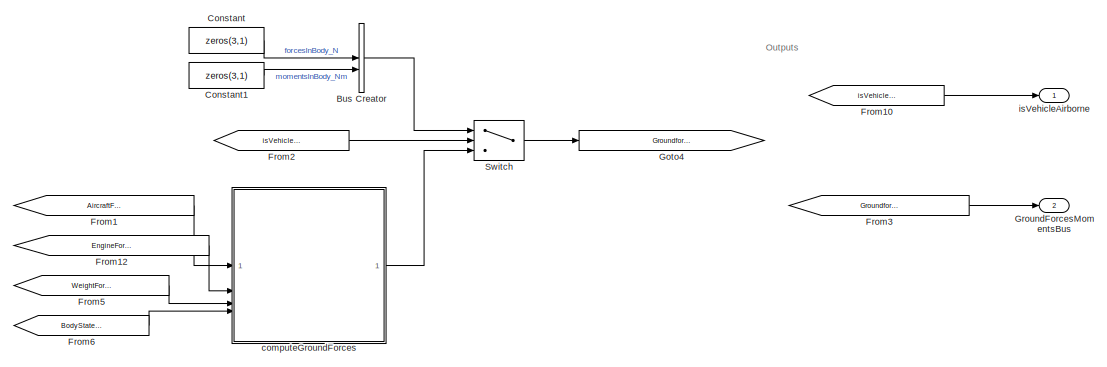
[diagram: root canvas - part 1/2, right side, full height]
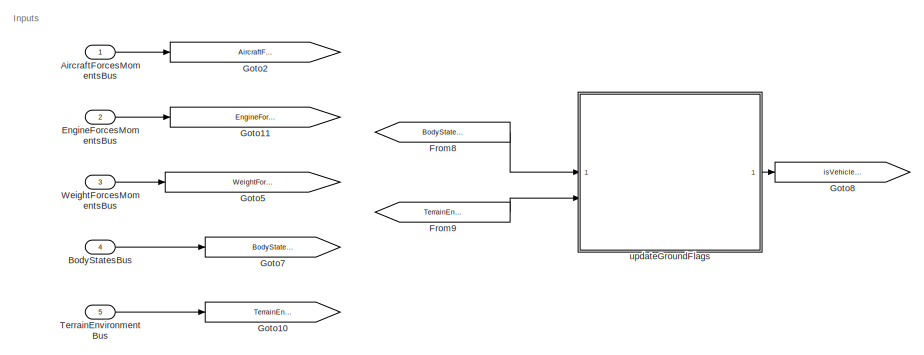
[diagram: root canvas - part 2/2, left side, full height]
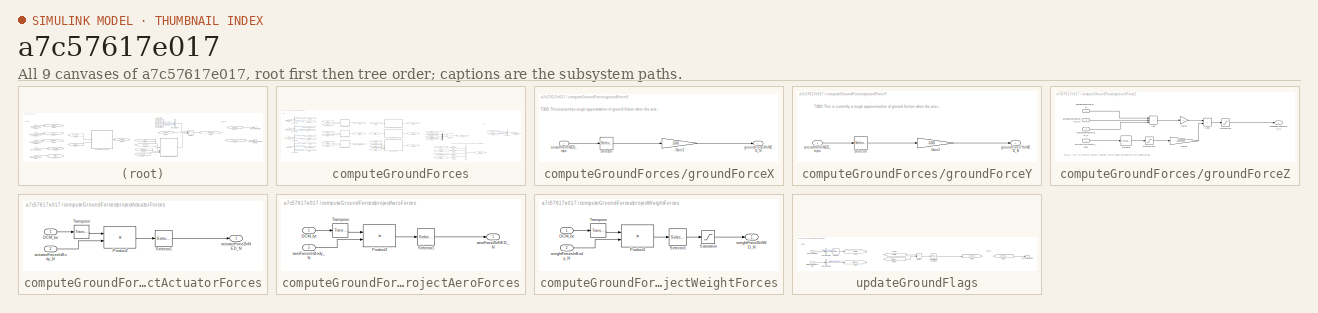
[diagram: thumbnail index - all 9 canvases of the model, root first then tree order]
MODEL slx_a7c57617e017
KIND model
BLOCK [Inport] AircraftForcesMomentsBus
  OutDataTypeStr = Bus: AircraftForcesMomentsBus
BLOCK [Inport] BodyStatesBus
  OutDataTypeStr = Bus: BodyStateBus
  Port = 4
BLOCK [BusCreator] Bus Creator
  DisplayOption = bar
  InheritFromInputs = on
  Inputs = 2
  OutDataTypeStr = Bus: ComponentForcesMomentsBus
BLOCK [Constant] Constant
  Value = zeros(3,1)
BLOCK [Constant] Constant1
  Value = zeros(3,1)
BLOCK [Inport] EngineForcesMomentsBus
  OutDataTypeStr = Bus: ComponentForcesMomentsBus
  Port = 2
BLOCK [From] From1
  GotoTag = AircraftForcesMomentsBus
BLOCK [From] From10
  GotoTag = isVehicleAirborne
BLOCK [From] From12
  GotoTag = EngineForcesMomentsBus
BLOCK [From] From2
  GotoTag = isVehicleAirborne
BLOCK [From] From3
  GotoTag = GroundforcesMomentsBus
BLOCK [From] From5
  GotoTag = WeightForcesMomentsBus
BLOCK [From] From6
  GotoTag = BodyStatesBus
BLOCK [From] From8
  GotoTag = BodyStatesBus
BLOCK [From] From9
  GotoTag = TerrainEnvironmentBus
BLOCK [Goto] Goto10
  GotoTag = TerrainEnvironmentBus
BLOCK [Goto] Goto11
  GotoTag = EngineForcesMomentsBus
BLOCK [Goto] Goto2
  GotoTag = AircraftForcesMomentsBus
BLOCK [Goto] Goto4
  GotoTag = GroundforcesMomentsBus
BLOCK [Goto] Goto5
  GotoTag = WeightForcesMomentsBus
BLOCK [Goto] Goto7
  GotoTag = BodyStatesBus
BLOCK [Goto] Goto8
  GotoTag = isVehicleAirborne
BLOCK [Outport] GroundForcesMomentsBus
  OutDataTypeStr = Bus: ComponentForcesMomentsBus
  Port = 2
BLOCK [Switch] Switch
  Criteria = u2 > Threshold
  InputSameDT = off
  SaturateOnIntegerOverflow = off
BLOCK [Inport] TerrainEnvironmentBus
  OutDataTypeStr = Bus: TerrainEnvironmentBus
  Port = 5
BLOCK [Inport] WeightForcesMomentsBus
  OutDataTypeStr = Bus: ComponentForcesMomentsBus
  Port = 3
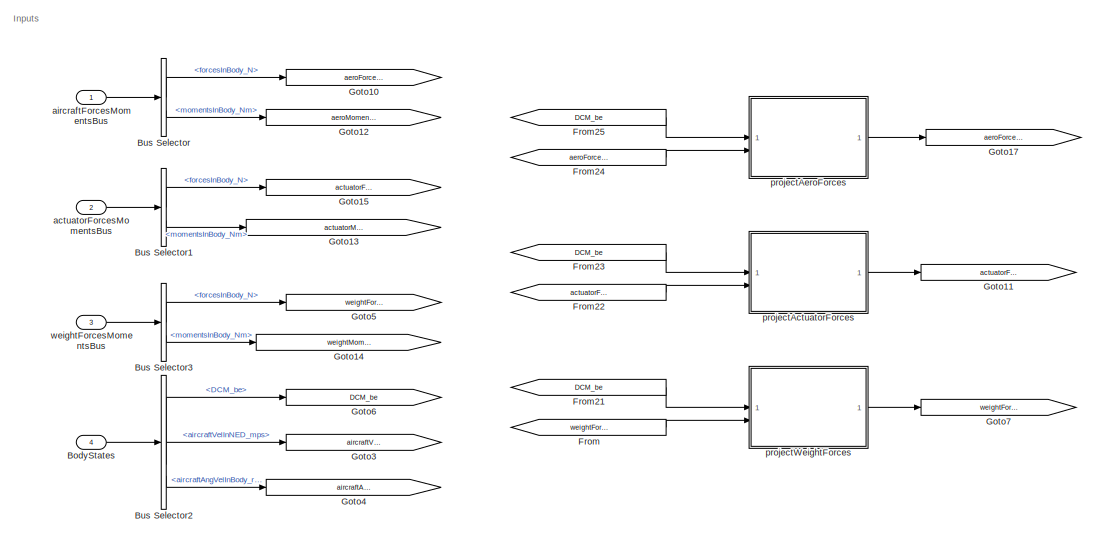
[diagram: computeGroundForces - part 1/3, left side, full height]
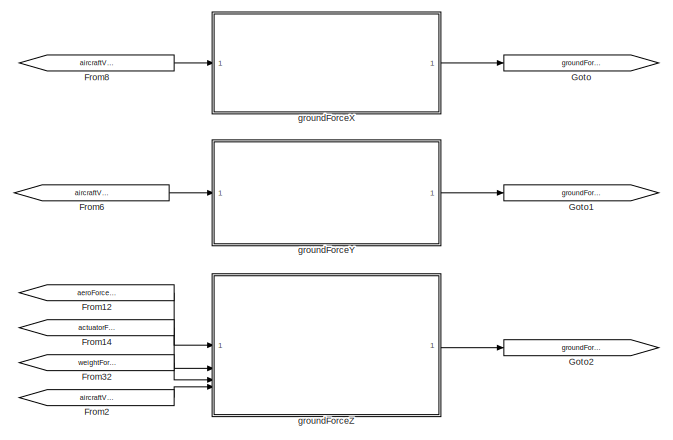
[diagram: computeGroundForces - part 2/3, central region]
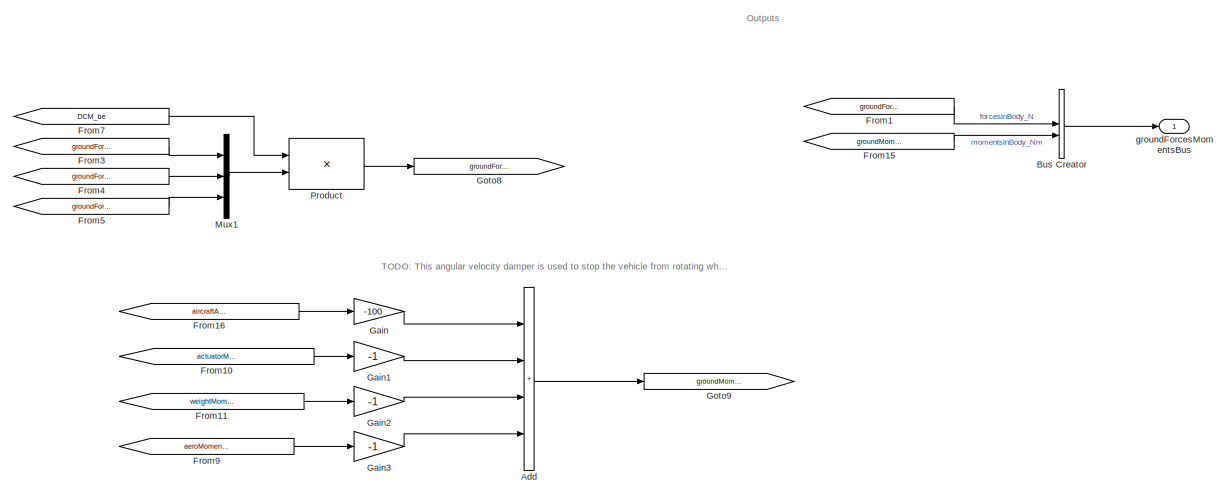
[diagram: computeGroundForces - part 3/3, right side, full height]
BLOCK [SubSystem] computeGroundForces
BLOCK [Sum] computeGroundForces/Add
  IconShape = rectangular
  Inputs = ++++
BLOCK [Inport] computeGroundForces/BodyStates
  OutDataTypeStr = Bus: BodyStateBus
  Port = 4
BLOCK [BusCreator] computeGroundForces/Bus Creator
  DisplayOption = bar
  InheritFromInputs = on
  Inputs = 2
  OutDataTypeStr = Bus: ComponentForcesMomentsBus
BLOCK [BusSelector] computeGroundForces/Bus Selector
  OutputSignals = forcesInBody_N,momentsInBody_Nm
BLOCK [BusSelector] computeGroundForces/Bus Selector1
  OutputSignals = forcesInBody_N,momentsInBody_Nm
BLOCK [BusSelector] computeGroundForces/Bus Selector2
  OutputSignals = DCM_be,aircraftVelInNED_mps,aircraftAngVelInBody_radps
BLOCK [BusSelector] computeGroundForces/Bus Selector3
  OutputSignals = forcesInBody_N,momentsInBody_Nm
BLOCK [From] computeGroundForces/From
  GotoTag = weightForcesInBody_N
BLOCK [From] computeGroundForces/From1
  GotoTag = groundForcesInBody_N
BLOCK [From] computeGroundForces/From10
  GotoTag = actuatorMomentsInBody_Nm
BLOCK [From] computeGroundForces/From11
  GotoTag = weightMomentsInBody_Nm
BLOCK [From] computeGroundForces/From12
  GotoTag = aeroForceZInNED_N
BLOCK [From] computeGroundForces/From14
  GotoTag = actuatorForceZInNED_N
BLOCK [From] computeGroundForces/From15
  GotoTag = groundMomentsInBody_Nm
BLOCK [From] computeGroundForces/From16
  GotoTag = aircraftAngVelBody_radps
BLOCK [From] computeGroundForces/From2
  GotoTag = aircraftVelInNED_mps
BLOCK [From] computeGroundForces/From21
  GotoTag = DCM_be
BLOCK [From] computeGroundForces/From22
  GotoTag = actuatorForcesInBody_N
BLOCK [From] computeGroundForces/From23
  GotoTag = DCM_be
BLOCK [From] computeGroundForces/From24
  GotoTag = aeroForcesInBody_N
BLOCK [From] computeGroundForces/From25
  GotoTag = DCM_be
BLOCK [From] computeGroundForces/From3
  GotoTag = groundForceXInNED_N
BLOCK [From] computeGroundForces/From32
  GotoTag = weightForceZInNED_N
BLOCK [From] computeGroundForces/From4
  GotoTag = groundForceYInNED_N
BLOCK [From] computeGroundForces/From5
  GotoTag = groundForceZInNED_N
BLOCK [From] computeGroundForces/From6
  GotoTag = aircraftVelInNED_mps
BLOCK [From] computeGroundForces/From7
  GotoTag = DCM_be
BLOCK [From] computeGroundForces/From8
  GotoTag = aircraftVelInNED_mps
BLOCK [From] computeGroundForces/From9
  GotoTag = aeroMomentsInBody_Nm
BLOCK [Gain] computeGroundForces/Gain
  Gain = -100
BLOCK [Gain] computeGroundForces/Gain1
  Gain = -1
BLOCK [Gain] computeGroundForces/Gain2
  Gain = -1
BLOCK [Gain] computeGroundForces/Gain3
  Gain = -1
BLOCK [Goto] computeGroundForces/Goto
  GotoTag = groundForceXInNED_N
BLOCK [Goto] computeGroundForces/Goto1
  GotoTag = groundForceYInNED_N
BLOCK [Goto] computeGroundForces/Goto10
  GotoTag = aeroForcesInBody_N
BLOCK [Goto] computeGroundForces/Goto11
  GotoTag = actuatorForceZInNED_N
BLOCK [Goto] computeGroundForces/Goto12
  GotoTag = aeroMomentsInBody_Nm
BLOCK [Goto] computeGroundForces/Goto13
  GotoTag = actuatorMomentsInBody_Nm
BLOCK [Goto] computeGroundForces/Goto14
  GotoTag = weightMomentsInBody_Nm
BLOCK [Goto] computeGroundForces/Goto15
  GotoTag = actuatorForcesInBody_N
BLOCK [Goto] computeGroundForces/Goto17
  GotoTag = aeroForceZInNED_N
BLOCK [Goto] computeGroundForces/Goto2
  GotoTag = groundForceZInNED_N
BLOCK [Goto] computeGroundForces/Goto3
  GotoTag = aircraftVelInNED_mps
BLOCK [Goto] computeGroundForces/Goto4
  GotoTag = aircraftAngVelBody_radps
BLOCK [Goto] computeGroundForces/Goto5
  GotoTag = weightForcesInBody_N
BLOCK [Goto] computeGroundForces/Goto6
  GotoTag = DCM_be
BLOCK [Goto] computeGroundForces/Goto7
  GotoTag = weightForceZInNED_N
BLOCK [Goto] computeGroundForces/Goto8
  GotoTag = groundForcesInBody_N
BLOCK [Goto] computeGroundForces/Goto9
  GotoTag = groundMomentsInBody_Nm
BLOCK [Mux] computeGroundForces/Mux1
  DisplayOption = bar
  Inputs = 3
BLOCK [Product] computeGroundForces/Product
  Multiplication = Matrix(*)
BLOCK [Inport] computeGroundForces/actuatorForcesMomentsBus
  OutDataTypeStr = Bus: ComponentForcesMomentsBus
  Port = 2
BLOCK [Inport] computeGroundForces/aircraftForcesMomentsBus
  OutDataTypeStr = Bus: AircraftForcesMomentsBus
BLOCK [SubSystem] computeGroundForces/groundForceX
BLOCK [Gain] computeGroundForces/groundForceX/Gain2
  Gain = -500
BLOCK [Selector] computeGroundForces/groundForceX/Selector
  IndexOptions = Index vector (dialog)
  Indices = 1
  InputPortWidth = 3
  OutputSizes = 1
BLOCK [Inport] computeGroundForces/groundForceX/aircraftVelInNED_mps
BLOCK [Outport] computeGroundForces/groundForceX/groundForceXInNED_N
BLOCK [SubSystem] computeGroundForces/groundForceY
BLOCK [Gain] computeGroundForces/groundForceY/Gain2
  Gain = -500
BLOCK [Selector] computeGroundForces/groundForceY/Selector
  IndexOptions = Index vector (dialog)
  Indices = 2
  InputPortWidth = 3
  OutputSizes = 1
BLOCK [Inport] computeGroundForces/groundForceY/aircraftVelInNED_mps
BLOCK [Outport] computeGroundForces/groundForceY/groundForceYInNED_N
BLOCK [SubSystem] computeGroundForces/groundForceZ
BLOCK [Sum] computeGroundForces/groundForceZ/Add
  IconShape = rectangular
  Inputs = +++
BLOCK [Sum] computeGroundForces/groundForceZ/Add1
  IconShape = rectangular
BLOCK [Gain] computeGroundForces/groundForceZ/Gain1
  Gain = -1
BLOCK [Gain] computeGroundForces/groundForceZ/Gain2
  Gain = -5000
BLOCK [Saturate] computeGroundForces/groundForceZ/Saturation
  LowerLimit = -inf
  UpperLimit = 0
BLOCK [Saturate] computeGroundForces/groundForceZ/Saturation1
  LowerLimit = 0
  UpperLimit = inf
BLOCK [Selector] computeGroundForces/groundForceZ/Selector
  IndexOptions = Index vector (dialog)
  Indices = 3
  InputPortWidth = 3
  OutputSizes = 1
BLOCK [Inport] computeGroundForces/groundForceZ/actuatorForceZInNED_N
  Port = 2
BLOCK [Inport] computeGroundForces/groundForceZ/aeroForceZInNED_N
BLOCK [Inport] computeGroundForces/groundForceZ/aircraftVelInNED_mps
  Port = 4
BLOCK [Outport] computeGroundForces/groundForceZ/groundForceZInNED_N
BLOCK [Inport] computeGroundForces/groundForceZ/weightForceZInNED_N
  Port = 3
BLOCK [Outport] computeGroundForces/groundForcesMomentsBus
  OutDataTypeStr = Bus: ComponentForcesMomentsBus
BLOCK [SubSystem] computeGroundForces/projectActuatorForces
BLOCK [Inport] computeGroundForces/projectActuatorForces/DCM_be
BLOCK [Product] computeGroundForces/projectActuatorForces/Product2
  Multiplication = Matrix(*)
BLOCK [Selector] computeGroundForces/projectActuatorForces/Selector1
  IndexOptions = Index vector (dialog)
  Indices = [3]
  InputPortWidth = 3
  OutputSizes = 1
BLOCK [Reference] computeGroundForces/projectActuatorForces/Transpose  REF=matrix_library/Transpose
  LibrarySourceBlock = simulink/Matrix\nOperations/Transpose
  SourceBlock = matrix_library/Transpose
  SourceType = Transpose
BLOCK [Outport] computeGroundForces/projectActuatorForces/actuatorForceZInNED_N
BLOCK [Inport] computeGroundForces/projectActuatorForces/actuatorForcesInBody_N
  Port = 2
BLOCK [SubSystem] computeGroundForces/projectAeroForces
BLOCK [Inport] computeGroundForces/projectAeroForces/DCM_be
BLOCK [Product] computeGroundForces/projectAeroForces/Product2
  Multiplication = Matrix(*)
BLOCK [Selector] computeGroundForces/projectAeroForces/Selector1
  IndexOptions = Index vector (dialog)
  Indices = [3]
  InputPortWidth = 3
  OutputSizes = 1
BLOCK [Reference] computeGroundForces/projectAeroForces/Transpose  REF=matrix_library/Transpose
  LibrarySourceBlock = simulink/Matrix\nOperations/Transpose
  SourceBlock = matrix_library/Transpose
  SourceType = Transpose
BLOCK [Outport] computeGroundForces/projectAeroForces/aeroForceZInNED_N
BLOCK [Inport] computeGroundForces/projectAeroForces/aeroForcesInBody_N
  Port = 2
BLOCK [SubSystem] computeGroundForces/projectWeightForces
BLOCK [Inport] computeGroundForces/projectWeightForces/DCM_be
BLOCK [Product] computeGroundForces/projectWeightForces/Product2
  Multiplication = Matrix(*)
BLOCK [Saturate] computeGroundForces/projectWeightForces/Saturation
  LowerLimit = 0
  UpperLimit = Inf
BLOCK [Selector] computeGroundForces/projectWeightForces/Selector1
  IndexOptions = Index vector (dialog)
  Indices = [3]
  InputPortWidth = 3
  OutputSizes = 1
BLOCK [Reference] computeGroundForces/projectWeightForces/Transpose  REF=matrix_library/Transpose
  LibrarySourceBlock = simulink/Matrix\nOperations/Transpose
  SourceBlock = matrix_library/Transpose
  SourceType = Transpose
BLOCK [Outport] computeGroundForces/projectWeightForces/weightForceZInNED_N
BLOCK [Inport] computeGroundForces/projectWeightForces/weightForcesInBody_N
  Port = 2
BLOCK [Inport] computeGroundForces/weightForcesMomentsBus
  OutDataTypeStr = Bus: ComponentForcesMomentsBus
  Port = 3
BLOCK [Outport] isVehicleAirborne
  OutDataTypeStr = boolean
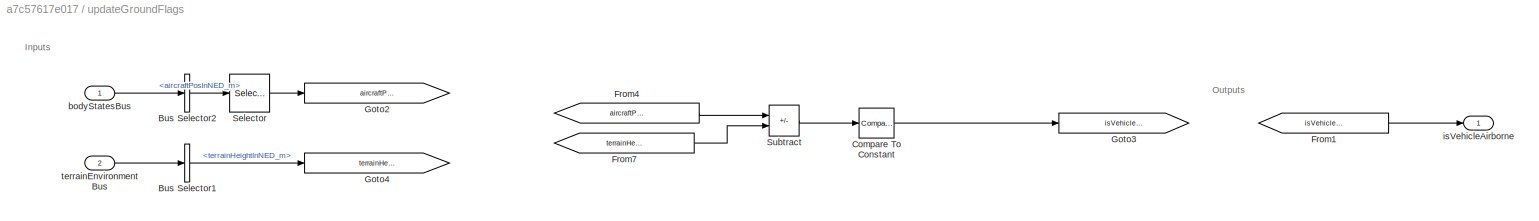
BLOCK [SubSystem] updateGroundFlags
BLOCK [BusSelector] updateGroundFlags/Bus Selector1
  OutputSignals = terrainHeightInNED_m
BLOCK [BusSelector] updateGroundFlags/Bus Selector2
  OutputSignals = aircraftPosInNED_m
BLOCK [Reference] updateGroundFlags/Compare To Constant  REF=simulink/Logic and Bit
Operations/Compare
To Constant
  SourceBlock = simulink/Logic and Bit\nOperations/Compare\nTo Constant
  SourceType = Compare To Constant
BLOCK [From] updateGroundFlags/From1
  GotoTag = isVehicleAirborne
BLOCK [From] updateGroundFlags/From4
  GotoTag = aircraftPosZInNED_m
BLOCK [From] updateGroundFlags/From7
  GotoTag = terrainHeightInNED_m
BLOCK [Goto] updateGroundFlags/Goto2
  GotoTag = aircraftPosZInNED_m
BLOCK [Goto] updateGroundFlags/Goto3
  GotoTag = isVehicleAirborne
BLOCK [Goto] updateGroundFlags/Goto4
  GotoTag = terrainHeightInNED_m
BLOCK [Selector] updateGroundFlags/Selector
  IndexOptions = Index vector (dialog)
  Indices = 3
  InputPortWidth = 3
  OutputSizes = 1
BLOCK [Sum] updateGroundFlags/Subtract
  IconShape = rectangular
  Inputs = +-
BLOCK [Inport] updateGroundFlags/bodyStatesBus
  OutDataTypeStr = Bus: BodyStateBus
BLOCK [Outport] updateGroundFlags/isVehicleAirborne
  OutDataTypeStr = boolean
BLOCK [Inport] updateGroundFlags/terrainEnvironmentBus
  OutDataTypeStr = Bus: TerrainEnvironmentBus
  Port = 2
ANNOTATION (root): Inputs
ANNOTATION (root): Outputs
ANNOTATION computeGroundForces: Inputs
ANNOTATION computeGroundForces: Outputs
ANNOTATION computeGroundForces: TODO: This angular velocity damper is used to stop the vehicle from rotating when it contacts the ground. To make more realistic, contact points can be added to the model and the forces and moments of those points would stop the vehicle from rotating when it contacts the ground
ANNOTATION computeGroundForces/groundForceX: TODO: This is currently a rough approximation of ground friction when the aircraft is on the ground. To make this more accurate, actual friction force should be calculated here
ANNOTATION computeGroundForces/groundForceY: TODO: This is currently a rough approximation of ground friction when the aircraft is on the ground. To make this more accurate, actual friction force should be calculated here
ANNOTATION computeGroundForces/groundForceZ: TODO: This is a normal velocity damper which keeps the vehicle from penetrating the ground. To make this more realistic, use the normal force.
ANNOTATION updateGroundFlags: Inputs
ANNOTATION updateGroundFlags: Outputs
LINE AircraftForcesMomentsBus:1 -> Goto2:1
LINE BodyStatesBus:1 -> Goto7:1
LINE Bus Creator:1 -> Switch:1
LINE Constant1:1 -> Bus Creator:2
LINE Constant:1 -> Bus Creator:1
LINE EngineForcesMomentsBus:1 -> Goto11:1
LINE From10:1 -> isVehicleAirborne:1
LINE From12:1 -> computeGroundForces:2
LINE From1:1 -> computeGroundForces:1
LINE From2:1 -> Switch:2
LINE From3:1 -> GroundForcesMomentsBus:1
LINE From5:1 -> computeGroundForces:3
LINE From6:1 -> computeGroundForces:4
LINE From8:1 -> updateGroundFlags:1
LINE From9:1 -> updateGroundFlags:2
LINE Switch:1 -> Goto4:1
LINE TerrainEnvironmentBus:1 -> Goto10:1
LINE WeightForcesMomentsBus:1 -> Goto5:1
LINE computeGroundForces/Add:1 -> computeGroundForces/Goto9:1
LINE computeGroundForces/BodyStates:1 -> computeGroundForces/Bus Selector2:1
LINE computeGroundForces/Bus Creator:1 -> computeGroundForces/groundForcesMomentsBus:1
LINE computeGroundForces/Bus Selector1:1 -> computeGroundForces/Goto15:1
LINE computeGroundForces/Bus Selector1:2 -> computeGroundForces/Goto13:1
LINE computeGroundForces/Bus Selector2:1 -> computeGroundForces/Goto6:1
LINE computeGroundForces/Bus Selector2:2 -> computeGroundForces/Goto3:1
LINE computeGroundForces/Bus Selector2:3 -> computeGroundForces/Goto4:1
LINE computeGroundForces/Bus Selector3:1 -> computeGroundForces/Goto5:1
LINE computeGroundForces/Bus Selector3:2 -> computeGroundForces/Goto14:1
LINE computeGroundForces/Bus Selector:1 -> computeGroundForces/Goto10:1
LINE computeGroundForces/Bus Selector:2 -> computeGroundForces/Goto12:1
LINE computeGroundForces/From10:1 -> computeGroundForces/Gain1:1
LINE computeGroundForces/From11:1 -> computeGroundForces/Gain2:1
LINE computeGroundForces/From12:1 -> computeGroundForces/groundForceZ:1
LINE computeGroundForces/From14:1 -> computeGroundForces/groundForceZ:2
LINE computeGroundForces/From15:1 -> computeGroundForces/Bus Creator:2
LINE computeGroundForces/From16:1 -> computeGroundForces/Gain:1
LINE computeGroundForces/From1:1 -> computeGroundForces/Bus Creator:1
LINE computeGroundForces/From21:1 -> computeGroundForces/projectWeightForces:1
LINE computeGroundForces/From22:1 -> computeGroundForces/projectActuatorForces:2
LINE computeGroundForces/From23:1 -> computeGroundForces/projectActuatorForces:1
LINE computeGroundForces/From24:1 -> computeGroundForces/projectAeroForces:2
LINE computeGroundForces/From25:1 -> computeGroundForces/projectAeroForces:1
LINE computeGroundForces/From2:1 -> computeGroundForces/groundForceZ:4
LINE computeGroundForces/From32:1 -> computeGroundForces/groundForceZ:3
LINE computeGroundForces/From3:1 -> computeGroundForces/Mux1:1
LINE computeGroundForces/From4:1 -> computeGroundForces/Mux1:2
LINE computeGroundForces/From5:1 -> computeGroundForces/Mux1:3
LINE computeGroundForces/From6:1 -> computeGroundForces/groundForceY:1
LINE computeGroundForces/From7:1 -> computeGroundForces/Product:1
LINE computeGroundForces/From8:1 -> computeGroundForces/groundForceX:1
LINE computeGroundForces/From9:1 -> computeGroundForces/Gain3:1
LINE computeGroundForces/From:1 -> computeGroundForces/projectWeightForces:2
LINE computeGroundForces/Gain1:1 -> computeGroundForces/Add:2
LINE computeGroundForces/Gain2:1 -> computeGroundForces/Add:3
LINE computeGroundForces/Gain3:1 -> computeGroundForces/Add:4
LINE computeGroundForces/Gain:1 -> computeGroundForces/Add:1
LINE computeGroundForces/Mux1:1 -> computeGroundForces/Product:2
LINE computeGroundForces/Product:1 -> computeGroundForces/Goto8:1
LINE computeGroundForces/actuatorForcesMomentsBus:1 -> computeGroundForces/Bus Selector1:1
LINE computeGroundForces/aircraftForcesMomentsBus:1 -> computeGroundForces/Bus Selector:1
LINE computeGroundForces/groundForceX/Gain2:1 -> computeGroundForces/groundForceX/groundForceXInNED_N:1
LINE computeGroundForces/groundForceX/Selector:1 -> computeGroundForces/groundForceX/Gain2:1
LINE computeGroundForces/groundForceX/aircraftVelInNED_mps:1 -> computeGroundForces/groundForceX/Selector:1
LINE computeGroundForces/groundForceX:1 -> computeGroundForces/Goto:1
LINE computeGroundForces/groundForceY/Gain2:1 -> computeGroundForces/groundForceY/groundForceYInNED_N:1
LINE computeGroundForces/groundForceY/Selector:1 -> computeGroundForces/groundForceY/Gain2:1
LINE computeGroundForces/groundForceY/aircraftVelInNED_mps:1 -> computeGroundForces/groundForceY/Selector:1
LINE computeGroundForces/groundForceY:1 -> computeGroundForces/Goto1:1
LINE computeGroundForces/groundForceZ/Add1:1 -> computeGroundForces/groundForceZ/Saturation:1
LINE computeGroundForces/groundForceZ/Add:1 -> computeGroundForces/groundForceZ/Gain1:1
LINE computeGroundForces/groundForceZ/Gain1:1 -> computeGroundForces/groundForceZ/Add1:1
LINE computeGroundForces/groundForceZ/Gain2:1 -> computeGroundForces/groundForceZ/Add1:2
LINE computeGroundForces/groundForceZ/Saturation1:1 -> computeGroundForces/groundForceZ/Gain2:1
LINE computeGroundForces/groundForceZ/Saturation:1 -> computeGroundForces/groundForceZ/groundForceZInNED_N:1
LINE computeGroundForces/groundForceZ/Selector:1 -> computeGroundForces/groundForceZ/Saturation1:1
LINE computeGroundForces/groundForceZ/actuatorForceZInNED_N:1 -> computeGroundForces/groundForceZ/Add:2
LINE computeGroundForces/groundForceZ/aeroForceZInNED_N:1 -> computeGroundForces/groundForceZ/Add:1
LINE computeGroundForces/groundForceZ/aircraftVelInNED_mps:1 -> computeGroundForces/groundForceZ/Selector:1
LINE computeGroundForces/groundForceZ/weightForceZInNED_N:1 -> computeGroundForces/groundForceZ/Add:3
LINE computeGroundForces/groundForceZ:1 -> computeGroundForces/Goto2:1
LINE computeGroundForces/projectActuatorForces/DCM_be:1 -> computeGroundForces/projectActuatorForces/Transpose:1
LINE computeGroundForces/projectActuatorForces/Product2:1 -> computeGroundForces/projectActuatorForces/Selector1:1
LINE computeGroundForces/projectActuatorForces/Selector1:1 -> computeGroundForces/projectActuatorForces/actuatorForceZInNED_N:1
LINE computeGroundForces/projectActuatorForces/Transpose:1 -> computeGroundForces/projectActuatorForces/Product2:1
LINE computeGroundForces/projectActuatorForces/actuatorForcesInBody_N:1 -> computeGroundForces/projectActuatorForces/Product2:2
LINE computeGroundForces/projectActuatorForces:1 -> computeGroundForces/Goto11:1
LINE computeGroundForces/projectAeroForces/DCM_be:1 -> computeGroundForces/projectAeroForces/Transpose:1
LINE computeGroundForces/projectAeroForces/Product2:1 -> computeGroundForces/projectAeroForces/Selector1:1
LINE computeGroundForces/projectAeroForces/Selector1:1 -> computeGroundForces/projectAeroForces/aeroForceZInNED_N:1
LINE computeGroundForces/projectAeroForces/Transpose:1 -> computeGroundForces/projectAeroForces/Product2:1
LINE computeGroundForces/projectAeroForces/aeroForcesInBody_N:1 -> computeGroundForces/projectAeroForces/Product2:2
LINE computeGroundForces/projectAeroForces:1 -> computeGroundForces/Goto17:1
LINE computeGroundForces/projectWeightForces/DCM_be:1 -> computeGroundForces/projectWeightForces/Transpose:1
LINE computeGroundForces/projectWeightForces/Product2:1 -> computeGroundForces/projectWeightForces/Selector1:1
LINE computeGroundForces/projectWeightForces/Saturation:1 -> computeGroundForces/projectWeightForces/weightForceZInNED_N:1
LINE computeGroundForces/projectWeightForces/Selector1:1 -> computeGroundForces/projectWeightForces/Saturation:1
LINE computeGroundForces/projectWeightForces/Transpose:1 -> computeGroundForces/projectWeightForces/Product2:1
LINE computeGroundForces/projectWeightForces/weightForcesInBody_N:1 -> computeGroundForces/projectWeightForces/Product2:2
LINE computeGroundForces/projectWeightForces:1 -> computeGroundForces/Goto7:1
LINE computeGroundForces/weightForcesMomentsBus:1 -> computeGroundForces/Bus Selector3:1
LINE computeGroundForces:1 -> Switch:3
LINE updateGroundFlags/Bus Selector1:1 -> updateGroundFlags/Goto4:1
LINE updateGroundFlags/Bus Selector2:1 -> updateGroundFlags/Selector:1
LINE updateGroundFlags/Compare To Constant:1 -> updateGroundFlags/Goto3:1
LINE updateGroundFlags/From1:1 -> updateGroundFlags/isVehicleAirborne:1
LINE updateGroundFlags/From4:1 -> updateGroundFlags/Subtract:1
LINE updateGroundFlags/From7:1 -> updateGroundFlags/Subtract:2
LINE updateGroundFlags/Selector:1 -> updateGroundFlags/Goto2:1
LINE updateGroundFlags/Subtract:1 -> updateGroundFlags/Compare To Constant:1
LINE updateGroundFlags/bodyStatesBus:1 -> updateGroundFlags/Bus Selector2:1
LINE updateGroundFlags/terrainEnvironmentBus:1 -> updateGroundFlags/Bus Selector1:1
LINE updateGroundFlags:1 -> Goto8:1
